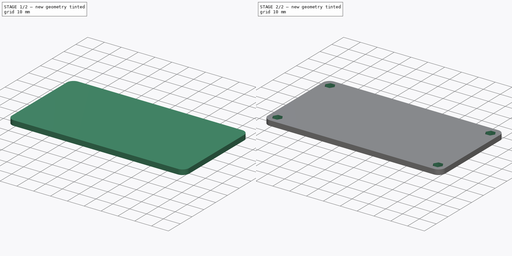
[diagram: build sequence overview — one tinted view per stage of 2, left to right]
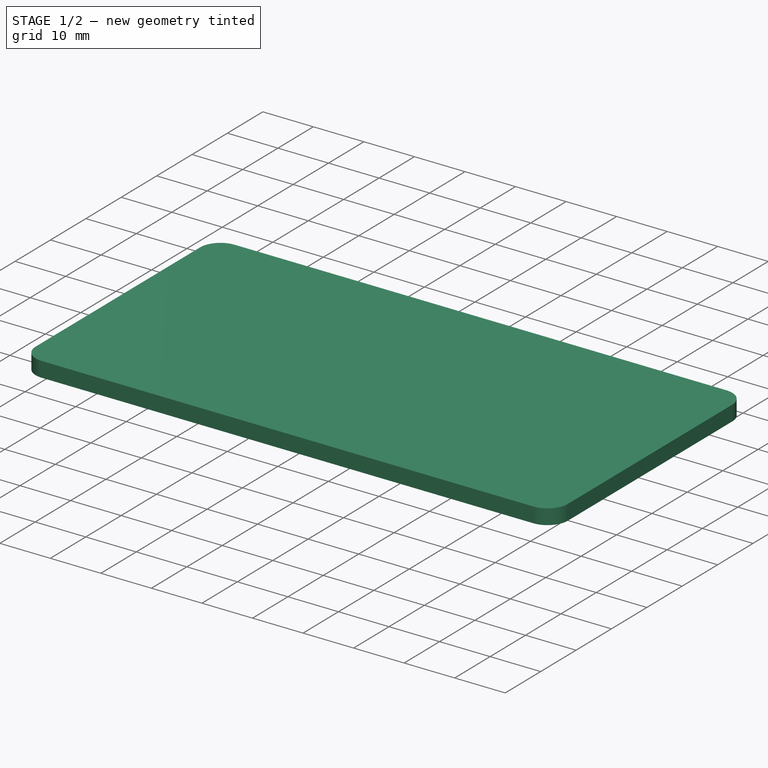
[diagram: stage 1 of 2 — iso view after this stage's code; geometry added in this stage tinted green]
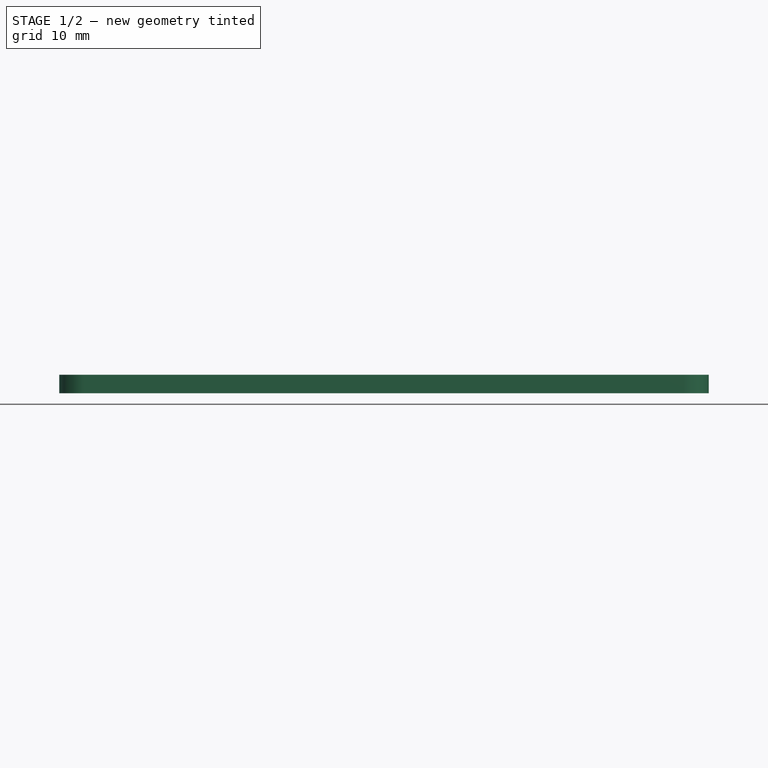
[diagram: stage 1 of 2 — front view after this stage's code; geometry added in this stage tinted green]
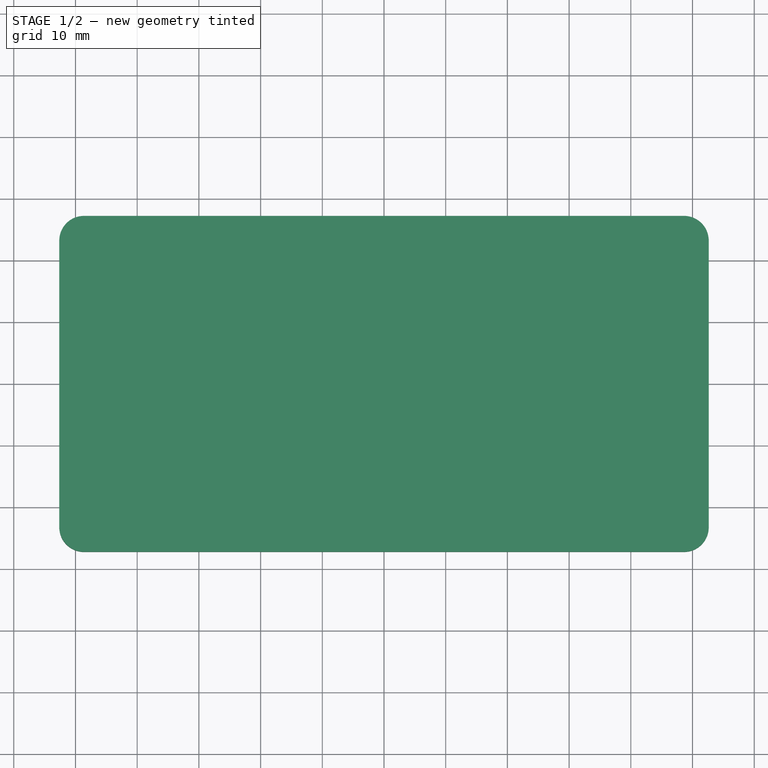
[diagram: stage 1 of 2 — top view after this stage's code; geometry added in this stage tinted green]
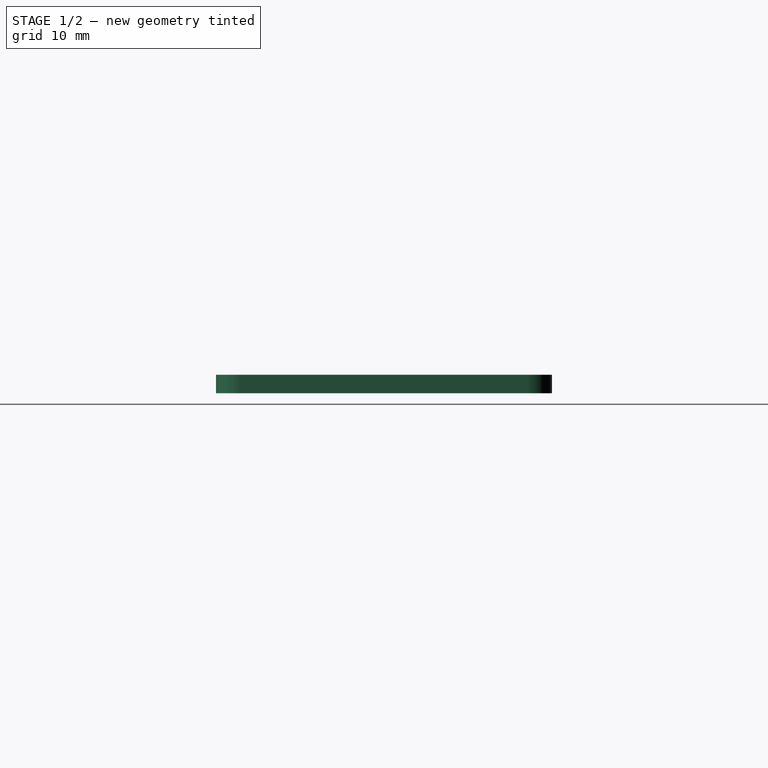
[diagram: stage 1 of 2 — right view after this stage's code; geometry added in this stage tinted green]
FCSTD DOCUMENT  (FreeCAD 1.0R39319 (Git))
Label: EPP-150_insulation_plate
License: All rights reserved
LicenseURL: https://en.wikipedia.org/wiki/All_rights_reserved
objects: Sketcher::SketchObject×2, Spreadsheet::Sheet×1, PartDesign::Pad×1, PartDesign::Pocket×1, PartDesign::Body×1
note: 11 computed .brp shape members not serialized (recipe doc carries the construction recipe); baked Part::Feature solids carry a one-line shape summary decoded from their .brp

FEATURE [Spreadsheet::Sheet] Spreadsheet
  cells = A1='Holes width spacing; B1(HolesWidSpa)=95.25; A2='Holes depth spacing; B2(HolesDepSpa)=44.45; A3='Hex flat size; B3(HexDia)=4.8; A4='plate thickness; B4(SpacerThi)=3; A5='plate fillet; B5(SpacerFil)=4; A6='Wall thickness; B6(WallThi)=5; A7='Calculations; A8='Total width; B8(TotalWid)==HolesWidSpa + WallThi * 2; A9='Total depth; B9(TotalDep)==HolesDepSpa + WallThi * 2
FEATURE [Sketcher::SketchObject] Sketch
  ArcFitTolerance = 1e-06
  AttachmentSupport = -> [XY_Plane]
  FullyConstrained = true
  MakeInternals = false
  MapMode = 5
  expr: Constraints[23] = Spreadsheet.SpacerFil
  expr: Constraints[5] = Spreadsheet.TotalWid
  expr: Constraints[6] = Spreadsheet.TotalDep
  sketch-geometry (12):
    g0: LineSegment StartX=-52.625 StartY=23.225 StartZ=0 EndX=-52.625 EndY=-23.225 EndZ=0
    g1: LineSegment StartX=-48.625 StartY=-27.225 StartZ=0 EndX=48.625 EndY=-27.225 EndZ=0
    g2: LineSegment StartX=52.625 StartY=-23.225 StartZ=0 EndX=52.625 EndY=23.225 EndZ=0
    g3: LineSegment StartX=48.625 StartY=27.225 StartZ=0 EndX=-48.625 EndY=27.225 EndZ=0
    g4: ArcOfCircle CenterX=-48.625 CenterY=-23.225 CenterZ=0 NormalX=0 NormalY=0 NormalZ=1 AngleXU=0 Radius=4 StartAngle=3.14159 EndAngle=4.71239
    g5: GeomPoint [constr] X=-52.625 Y=-27.225 Z=0
    g6: ArcOfCircle CenterX=48.625 CenterY=-23.225 CenterZ=0 NormalX=0 NormalY=0 NormalZ=1 AngleXU=0 Radius=4 StartAngle=4.71239 EndAngle=6.28319
    g7: GeomPoint [constr] X=52.625 Y=-27.225 Z=0
    g8: ArcOfCircle CenterX=48.625 CenterY=23.225 CenterZ=0 NormalX=0 NormalY=0 NormalZ=1 AngleXU=0 Radius=4 StartAngle=4e-16 EndAngle=1.5708
    g9: GeomPoint [constr] X=52.625 Y=27.225 Z=0
    g10: ArcOfCircle CenterX=-48.625 CenterY=23.225 CenterZ=0 NormalX=0 NormalY=0 NormalZ=1 AngleXU=0 Radius=4 StartAngle=1.5708 EndAngle=3.14159
    g11: GeomPoint [constr] X=-52.625 Y=27.225 Z=0
  constraints (27):
    c: Vertical(g0)
    c: Vertical(g2)
    c: Horizontal(g1)
    c: Horizontal(g3)
    c: Symmetric(g9,g5,g-1)
    c: DistanceX(g5,g7) = 105.25
    c: DistanceY(g5,g11) = 54.45
    c: PointOnObject(g5,g0)
    c: PointOnObject(g5,g1)
    c: Tangent(g0,g4) = -1.5708
    c: Tangent(g1,g4) = -1.5708
    c: PointOnObject(g7,g1)
    c: PointOnObject(g7,g2)
    c: Tangent(g1,g6) = -1.5708
    c: Tangent(g2,g6) = -1.5708
    c: PointOnObject(g9,g2)
    c: PointOnObject(g9,g3)
    c: Tangent(g2,g8) = -1.5708
    c: Tangent(g3,g8) = -1.5708
    c: PointOnObject(g11,g3)
    c: PointOnObject(g11,g0)
    c: Tangent(g3,g10) = -1.5708
    c: Tangent(g0,g10) = -1.5708
    c: DistanceX(g0,g4) = 4
    c: Horizontal(g4,g6)
    c: Vertical(g4,g10)
    c: Horizontal(g10,g8)
FEATURE [PartDesign::Pad] Pad  label="MainMass"
  Direction = (0,0,1)
  Length = 3
  Length2 = 10
  Profile = -> Sketch
  ReferenceAxis = -> Sketch [N_Axis]
  Refine = true
  Suppressed = false
  Type = 0
  expr: Length = Spreadsheet.SpacerThi
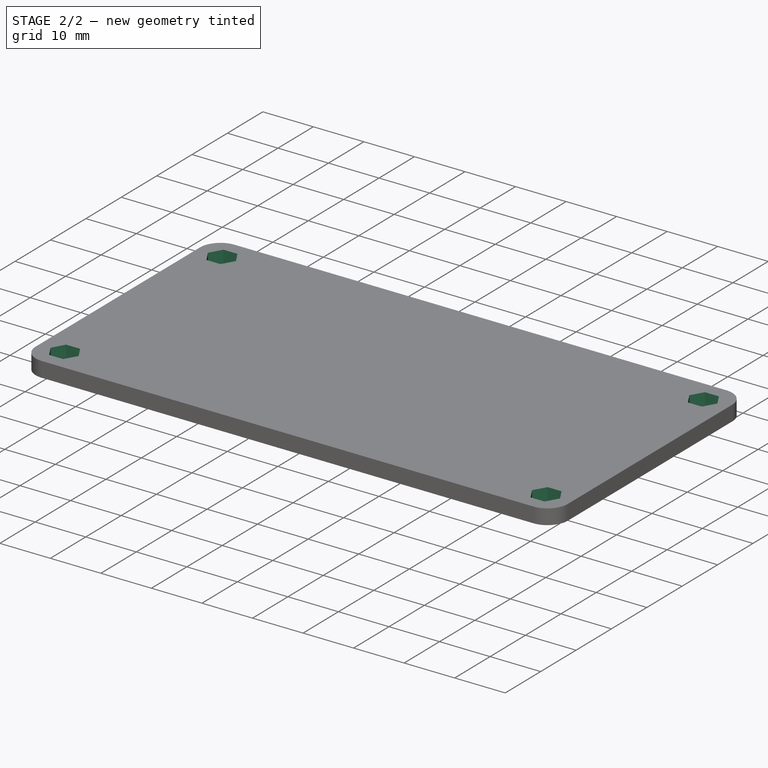
[diagram: stage 2 of 2 — iso view after this stage's code; geometry added in this stage tinted green]
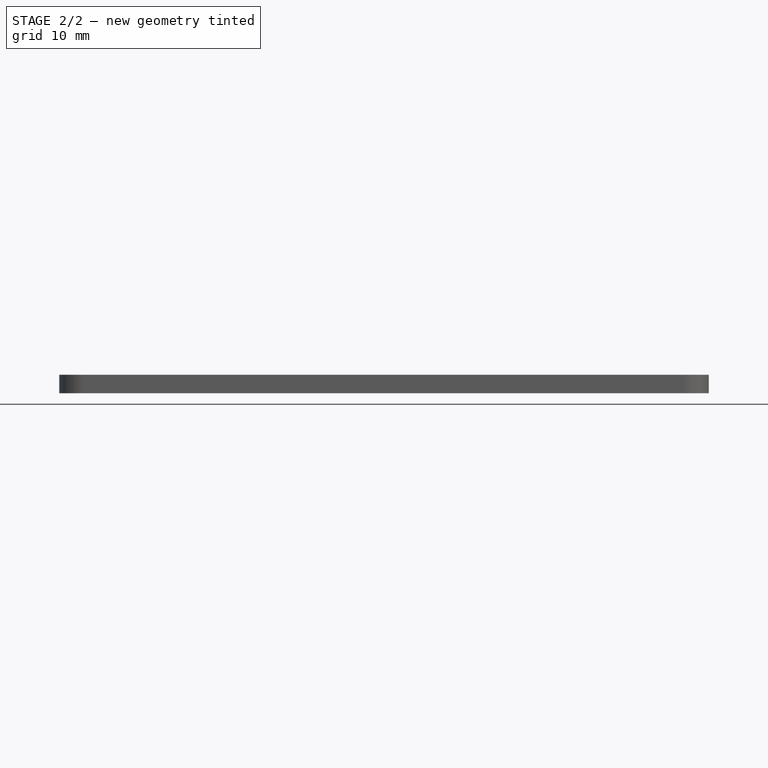
[diagram: stage 2 of 2 — front view after this stage's code; geometry added in this stage tinted green]
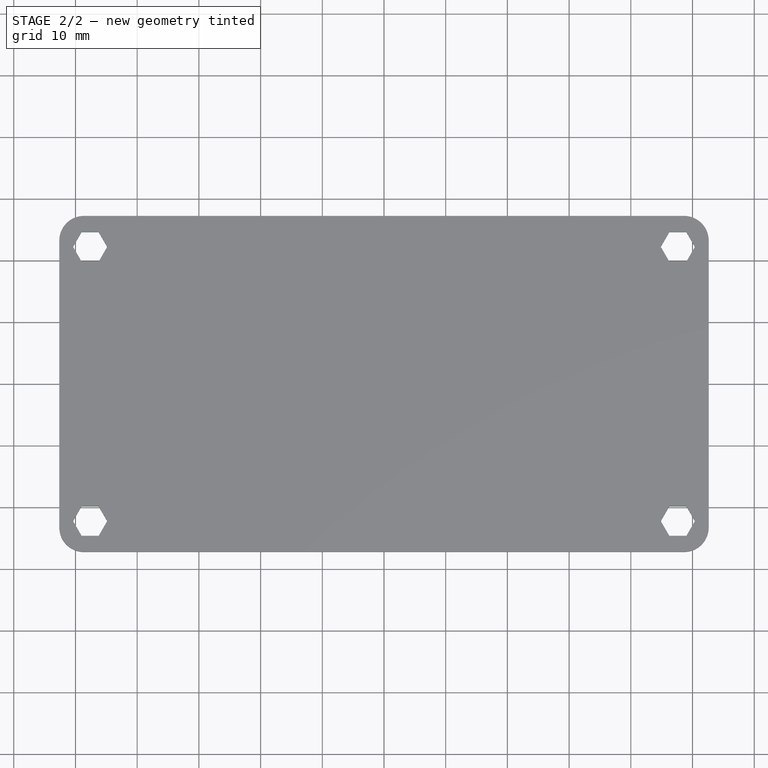
[diagram: stage 2 of 2 — top view after this stage's code; geometry added in this stage tinted green]
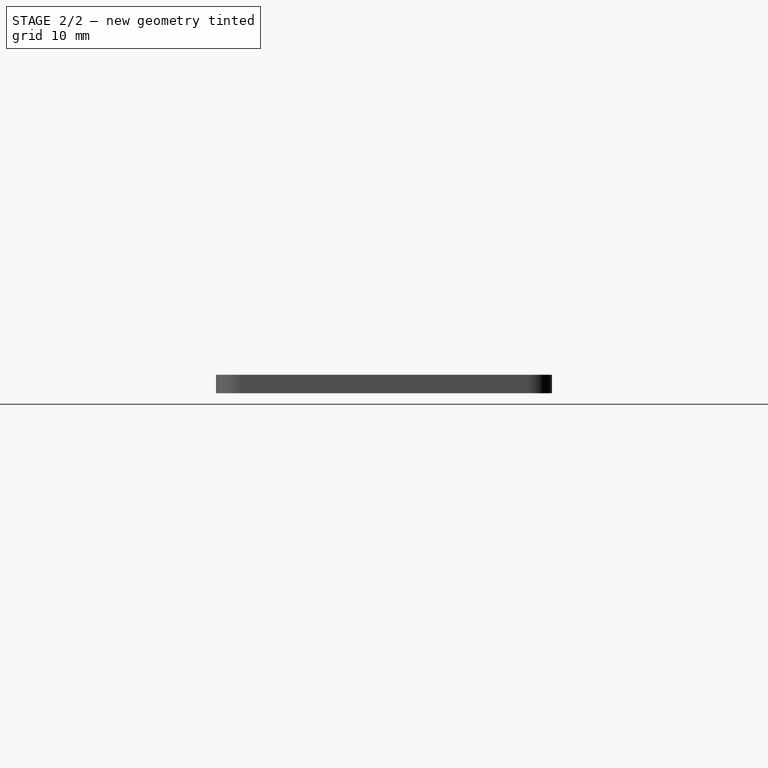
[diagram: stage 2 of 2 — right view after this stage's code; geometry added in this stage tinted green]
FEATURE [Sketcher::SketchObject] Sketch001
  ArcFitTolerance = 1e-06
  AttachmentSupport = -> [Pad]
  FullyConstrained = true
  MakeInternals = false
  MapMode = 5
  Placement = pos=(0,0,3) rot=(0,0,1;0rad)
  expr: Constraints[28] = Spreadsheet.HexDia
  expr: Constraints[29] = Spreadsheet.HolesWidSpa
  expr: Constraints[30] = Spreadsheet.HolesDepSpa
  sketch-geometry (32):
    g0: LineSegment [constr] StartX=-47.625 StartY=22.225 StartZ=0 EndX=-47.625 EndY=-22.225 EndZ=0
    g1: LineSegment [constr] StartX=-47.625 StartY=-22.225 StartZ=0 EndX=47.625 EndY=-22.225 EndZ=0
    g2: LineSegment [constr] StartX=47.625 StartY=-22.225 StartZ=0 EndX=47.625 EndY=22.225 EndZ=0
    g3: LineSegment [constr] StartX=47.625 StartY=22.225 StartZ=0 EndX=-47.625 EndY=22.225 EndZ=0
    g4: LineSegment StartX=-44.8537 StartY=-22.225 StartZ=0 EndX=-46.2394 EndY=-19.825 EndZ=0
    g5: LineSegment StartX=-46.2394 StartY=-19.825 StartZ=0 EndX=-49.0106 EndY=-19.825 EndZ=0
    g6: LineSegment StartX=-49.0106 StartY=-19.825 StartZ=0 EndX=-50.3963 EndY=-22.225 EndZ=0
    g7: LineSegment StartX=-50.3963 StartY=-22.225 StartZ=0 EndX=-49.0106 EndY=-24.625 EndZ=0
    g8: LineSegment StartX=-49.0106 StartY=-24.625 StartZ=0 EndX=-46.2394 EndY=-24.625 EndZ=0
    g9: LineSegment StartX=-46.2394 StartY=-24.625 StartZ=0 EndX=-44.8537 EndY=-22.225 EndZ=0
    g10: Circle [constr] CenterX=-47.625 CenterY=-22.225 CenterZ=0 NormalX=0 NormalY=0 NormalZ=1 AngleXU=0 Radius=2.77128
    g11: LineSegment StartX=44.8537 StartY=-22.225 StartZ=0 EndX=46.2394 EndY=-24.625 EndZ=0
    g12: LineSegment StartX=46.2394 StartY=-24.625 StartZ=0 EndX=49.0106 EndY=-24.625 EndZ=0
    g13: LineSegment StartX=49.0106 StartY=-24.625 StartZ=0 EndX=50.3963 EndY=-22.225 EndZ=0
    g14: LineSegment StartX=50.3963 StartY=-22.225 StartZ=0 EndX=49.0106 EndY=-19.825 EndZ=0
    g15: LineSegment StartX=49.0106 StartY=-19.825 StartZ=0 EndX=46.2394 EndY=-19.825 EndZ=0
    g16: LineSegment StartX=46.2394 StartY=-19.825 StartZ=0 EndX=44.8537 EndY=-22.225 EndZ=0
    g17: Circle [constr] CenterX=47.625 CenterY=-22.225 CenterZ=0 NormalX=0 NormalY=0 NormalZ=1 AngleXU=0 Radius=2.77128
    g18: LineSegment StartX=44.8537 StartY=22.225 StartZ=0 EndX=46.2394 EndY=19.825 EndZ=0
    g19: LineSegment StartX=46.2394 StartY=19.825 StartZ=0 EndX=49.0106 EndY=19.825 EndZ=0
    g20: LineSegment StartX=49.0106 StartY=19.825 StartZ=0 EndX=50.3963 EndY=22.225 EndZ=0
    g21: LineSegment StartX=50.3963 StartY=22.225 StartZ=0 EndX=49.0106 EndY=24.625 EndZ=0
    g22: LineSegment StartX=49.0106 StartY=24.625 StartZ=0 EndX=46.2394 EndY=24.625 EndZ=0
    g23: LineSegment StartX=46.2394 StartY=24.625 StartZ=0 EndX=44.8537 EndY=22.225 EndZ=0
    g24: Circle [constr] CenterX=47.625 CenterY=22.225 CenterZ=0 NormalX=0 NormalY=0 NormalZ=1 AngleXU=0 Radius=2.77128
    g25: LineSegment StartX=-44.8537 StartY=22.225 StartZ=0 EndX=-46.2394 EndY=24.625 EndZ=0
    g26: LineSegment StartX=-46.2394 StartY=24.625 StartZ=0 EndX=-49.0106 EndY=24.625 EndZ=0
    g27: LineSegment StartX=-49.0106 StartY=24.625 StartZ=0 EndX=-50.3963 EndY=22.225 EndZ=0
    g28: LineSegment StartX=-50.3963 StartY=22.225 StartZ=0 EndX=-49.0106 EndY=19.825 EndZ=0
    g29: LineSegment StartX=-49.0106 StartY=19.825 StartZ=0 EndX=-46.2394 EndY=19.825 EndZ=0
    g30: LineSegment StartX=-46.2394 StartY=19.825 StartZ=0 EndX=-44.8537 EndY=22.225 EndZ=0
    g31: Circle [constr] CenterX=-47.625 CenterY=22.225 CenterZ=0 NormalX=0 NormalY=0 NormalZ=1 AngleXU=0 Radius=2.77128
  constraints (75):
    c: Coincident(g0,g1)
    c: Coincident(g1,g2)
    c: Coincident(g2,g3)
    c: Coincident(g3,g0)
    c: Vertical(g0)
    c: Vertical(g2)
    c: Horizontal(g1)
    c: Horizontal(g3)
    c: Symmetric(g2,g0,g-1)
    c: Coincident(g4,g5)
    c: Coincident(g5,g6)
    c: Coincident(g6,g7)
    c: Coincident(g7,g8)
    c: Coincident(g8,g9)
    c: Coincident(g9,g4)
    c: Equal(g4, g5-g9) x5
    c: PointOnObject(g4,g10)
    c: PointOnObject(g5,g10)
    c: PointOnObject(g6,g10)
    c: PointOnObject(g7,g10)
    c: PointOnObject(g8,g10)
    c: PointOnObject(g9,g10)
    c: Coincident(g10,g0)
    c: PointOnObject(g9,g1)
    c: DistanceY(g8,g4) = 4.8
    c: DistanceX(g1,g1) = 95.25
    c: DistanceY(g0,g0) = 44.45
    c: Coincident(g11,g12)
    c: Coincident(g12,g13)
    c: Coincident(g13,g14)
    c: Coincident(g14,g15)
    c: Coincident(g15,g16)
    c: Coincident(g16,g11)
    c: Equal(g11, g12-g16) x5
    c: PointOnObject(g11,g17)
    c: PointOnObject(g12,g17)
    c: PointOnObject(g13,g17)
    c: PointOnObject(g14,g17)
    c: PointOnObject(g15,g17)
    c: PointOnObject(g16,g17)
    c: Coincident(g17,g1)
    c: PointOnObject(g16,g1)
    c: Coincident(g18,g19)
    c: Coincident(g19,g20)
    c: Coincident(g20,g21)
    c: Coincident(g21,g22)
    c: Coincident(g22,g23)
    c: Coincident(g23,g18)
    c: Equal(g18, g19-g23) x5
    c: PointOnObject(g18,g24)
    c: PointOnObject(g19,g24)
    c: PointOnObject(g20,g24)
    c: PointOnObject(g21,g24)
    c: PointOnObject(g22,g24)
    c: PointOnObject(g23,g24)
    c: Coincident(g24,g2)
    c: PointOnObject(g23,g3)
    c: Coincident(g25,g26)
    c: Coincident(g26,g27)
    c: Coincident(g27,g28)
    c: Coincident(g28,g29)
    c: Coincident(g29,g30)
    c: Coincident(g30,g25)
    c: Equal(g25, g26-g30) x5
    c: PointOnObject(g25,g31)
    c: PointOnObject(g26,g31)
    c: PointOnObject(g27,g31)
    c: PointOnObject(g28,g31)
    c: PointOnObject(g29,g31)
    c: PointOnObject(g30,g31)
    c: Coincident(g31,g0)
    c: PointOnObject(g30,g3)
    c: Equal(g5,g29)
    c: Equal(g5,g15)
    c: Equal(g5,g19)
FEATURE [PartDesign::Pocket] Pocket
  BaseFeature = -> Pad
  Direction = (0,0,-1)
  Length = 5
  Length2 = 5
  Profile = -> Sketch001
  ReferenceAxis = -> Sketch001 [N_Axis]
  Refine = true
  Suppressed = false
  Type = 1
FEATURE [PartDesign::Body] Body
  AllowCompound = false
  Group = -> [Sketch,Pad,Sketch001,Pocket]
  Origin = -> Origin
  Tip = -> Pocket
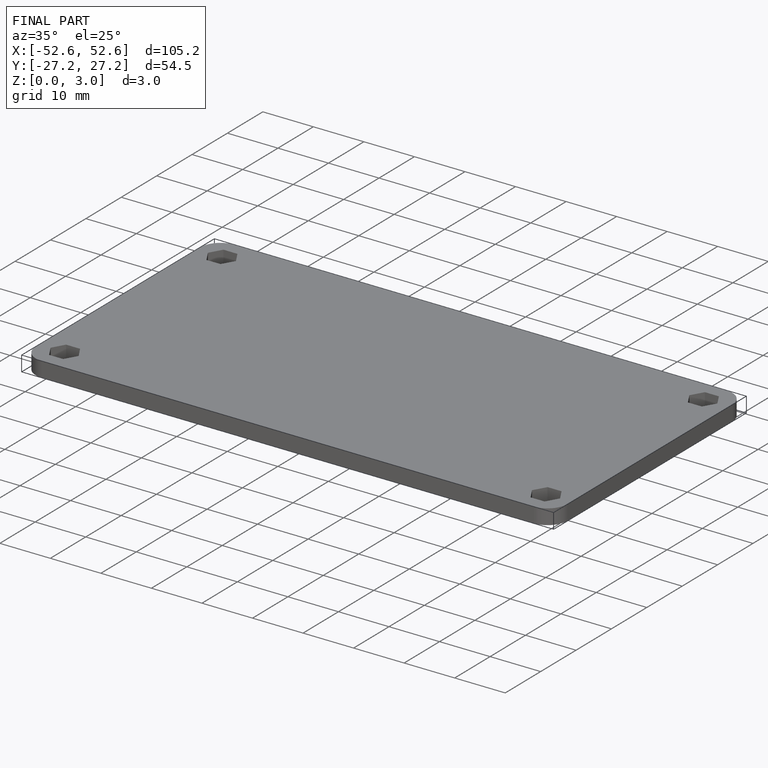
[diagram: finished part — iso view with bounding-box wireframe]
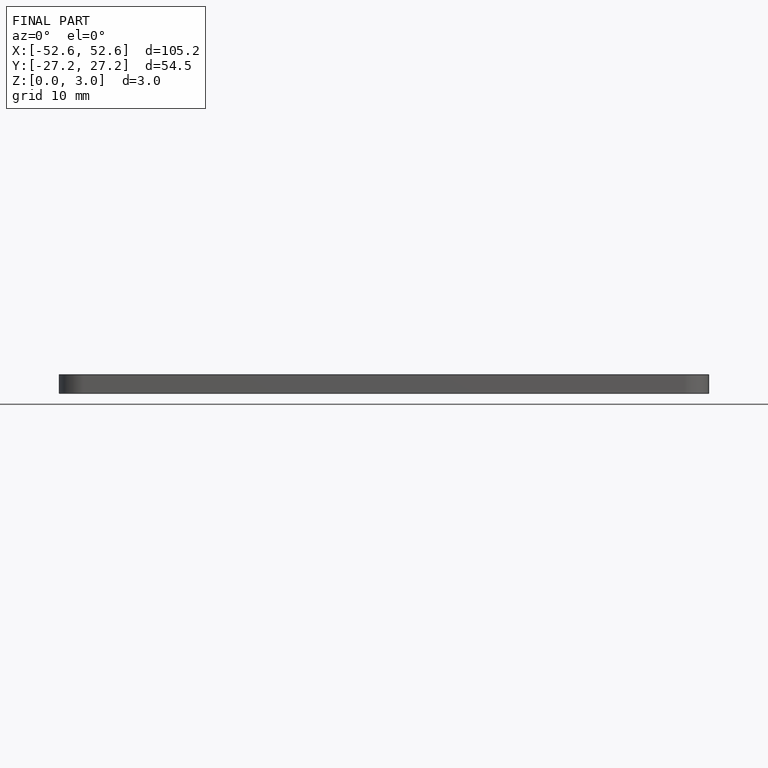
[diagram: finished part — front view with bounding-box wireframe]
